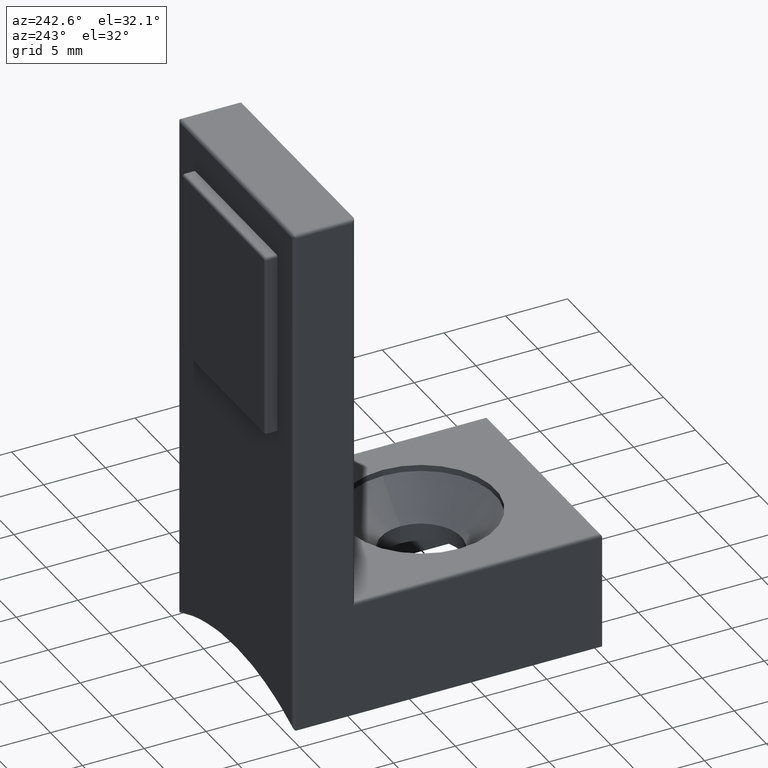
[diagram: clean part render]
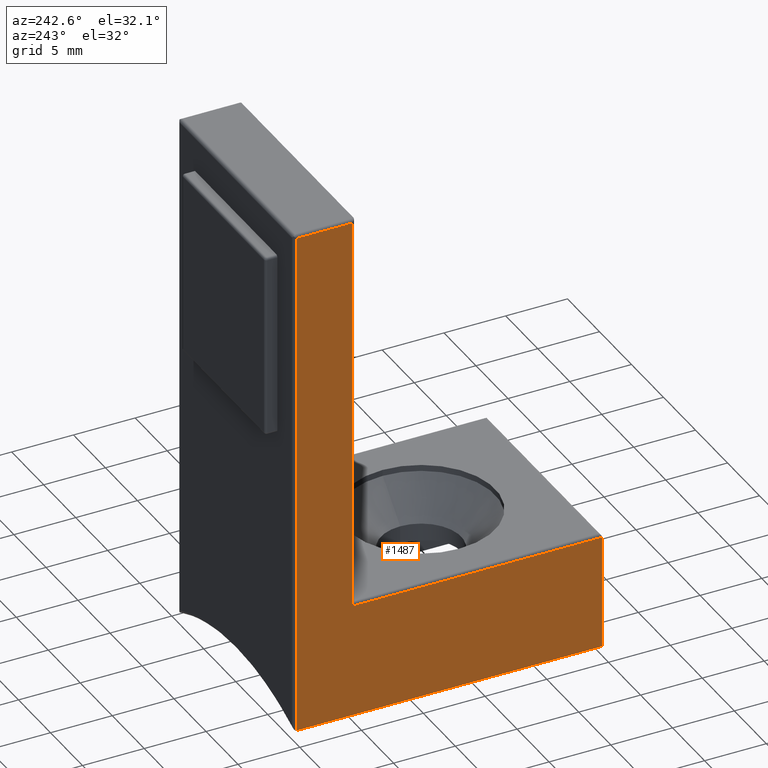
[diagram: same view with one face highlighted and labeled with its STEP entity id]
A machine part, auxiliary view. The second image highlights one B-rep face of the part: STEP entity #1487.
In plain terms, the highlighted planar face has unit normal (-1, 0, 0).
Its self-contained STEP definition (entity closure, byte-faithful):
#1373 = LINE ( 'NONE', #7826, #8072 ) ;
#1435 = FACE_OUTER_BOUND ( 'NONE', #13814, .T. ) ;
#1487 = ADVANCED_FACE ( 'NONE', ( #1435 ), #12228, .T. ) ;
#1514 = DIRECTION ( 'NONE',  ( -0.0000000000000000000, 1.000000000000000000, -0.0000000000000000000 ) ) ;
#1912 = AXIS2_PLACEMENT_3D ( 'NONE', #5431, #6479, #3032 ) ;
#2047 = EDGE_CURVE ( 'NONE', #5340, #11198, #2970, .T. ) ;
#2800 = LINE ( 'NONE', #12804, #14442 ) ;
#2970 = LINE ( 'NONE', #9073, #8807 ) ;
#3025 = VECTOR ( 'NONE', #3873, 1000.000000000000000 ) ;
#3032 = DIRECTION ( 'NONE',  ( 0.0000000000000000000, 0.0000000000000000000, 1.000000000000000000 ) ) ;
#3166 = ORIENTED_EDGE ( 'NONE', *, *, #9983, .T. ) ;
#3873 = DIRECTION ( 'NONE',  ( -0.0000000000000000000, 1.000000000000000000, 1.734723475976806800E-016 ) ) ;
#3944 = CARTESIAN_POINT ( 'NONE',  ( -9.000000000000000000, -0.2500000000000000000, 39.75000000000000000 ) ) ;
#4496 = EDGE_CURVE ( 'NONE', #4794, #13198, #1373, .T. ) ;
#4729 = CARTESIAN_POINT ( 'NONE',  ( -9.000000000000000000, -0.2500000000000000000, -2.005209039950446700 ) ) ;
#4794 = VERTEX_POINT ( 'NONE', #13855 ) ;
#4991 = ORIENTED_EDGE ( 'NONE', *, *, #9535, .T. ) ;
#5340 = VERTEX_POINT ( 'NONE', #11346 ) ;
#5431 = CARTESIAN_POINT ( 'NONE',  ( -9.000000000000000000, 0.0000000000000000000, 0.0000000000000000000 ) ) ;
#5572 = DIRECTION ( 'NONE',  ( 0.0000000000000000000, 0.0000000000000000000, -1.000000000000000000 ) ) ;
#5891 = DIRECTION ( 'NONE',  ( -0.0000000000000000000, 0.0000000000000000000, -1.000000000000000000 ) ) ;
#5993 = CARTESIAN_POINT ( 'NONE',  ( -9.000000000000000000, -4.750000000000000000, 40.00000000000000000 ) ) ;
#6211 = LINE ( 'NONE', #4729, #7108 ) ;
#6479 = DIRECTION ( 'NONE',  ( -1.000000000000000000, 0.0000000000000000000, 0.0000000000000000000 ) ) ;
#6746 = LINE ( 'NONE', #7247, #3025 ) ;
#6849 = CARTESIAN_POINT ( 'NONE',  ( -9.000000000000000000, -0.2500000000000002200, -2.005209039950446700 ) ) ;
#7074 = VERTEX_POINT ( 'NONE', #14414 ) ;
#7108 = VECTOR ( 'NONE', #5891, 1000.000000000000000 ) ;
#7158 = EDGE_CURVE ( 'NONE', #13198, #9372, #2800, .T. ) ;
#7247 = CARTESIAN_POINT ( 'NONE',  ( -9.000000000000000000, -4.999999999999999100, 7.249999999999999100 ) ) ;
#7308 = DIRECTION ( 'NONE',  ( -0.0000000000000000000, -2.668805347656626100E-017, 1.000000000000000000 ) ) ;
#7724 = ORIENTED_EDGE ( 'NONE', *, *, #9443, .T. ) ;
#7826 = CARTESIAN_POINT ( 'NONE',  ( -9.000000000000000000, -25.00000000000000000, 7.499999999999996400 ) ) ;
#8072 = VECTOR ( 'NONE', #5572, 1000.000000000000000 ) ;
#8184 = ORIENTED_EDGE ( 'NONE', *, *, #2047, .T. ) ;
#8807 = VECTOR ( 'NONE', #13602, 1000.000000000000000 ) ;
#8996 = ORIENTED_EDGE ( 'NONE', *, *, #7158, .F. ) ;
#9073 = CARTESIAN_POINT ( 'NONE',  ( -9.000000000000000000, -0.2500000000000002200, 39.75000000000000000 ) ) ;
#9372 = VERTEX_POINT ( 'NONE', #6849 ) ;
#9443 = EDGE_CURVE ( 'NONE', #11198, #9372, #6211, .T. ) ;
#9535 = EDGE_CURVE ( 'NONE', #4794, #7074, #6746, .T. ) ;
#9983 = EDGE_CURVE ( 'NONE', #7074, #5340, #12388, .T. ) ;
#10041 = ORIENTED_EDGE ( 'NONE', *, *, #4496, .F. ) ;
#11094 = CARTESIAN_POINT ( 'NONE',  ( -9.000000000000000000, -25.00000000000000000, -2.005209039950446700 ) ) ;
#11198 = VERTEX_POINT ( 'NONE', #3944 ) ;
#11346 = CARTESIAN_POINT ( 'NONE',  ( -9.000000000000000000, -4.750000000000000000, 39.75000000000000000 ) ) ;
#12059 = VECTOR ( 'NONE', #7308, 1000.000000000000000 ) ;
#12228 = PLANE ( 'NONE',  #1912 ) ;
#12388 = LINE ( 'NONE', #5993, #12059 ) ;
#12804 = CARTESIAN_POINT ( 'NONE',  ( -9.000000000000000000, -25.00000000000000000, -2.005209039950446700 ) ) ;
#13198 = VERTEX_POINT ( 'NONE', #11094 ) ;
#13602 = DIRECTION ( 'NONE',  ( -0.0000000000000000000, 1.000000000000000000, -0.0000000000000000000 ) ) ;
#13814 = EDGE_LOOP ( 'NONE', ( #3166, #8184, #7724, #8996, #10041, #4991 ) ) ;
#13855 = CARTESIAN_POINT ( 'NONE',  ( -9.000000000000000000, -25.00000000000000000, 7.249999999999996400 ) ) ;
#14414 = CARTESIAN_POINT ( 'NONE',  ( -9.000000000000000000, -4.749999999999999100, 7.249999999999999100 ) ) ;
#14442 = VECTOR ( 'NONE', #1514, 1000.000000000000000 ) ;